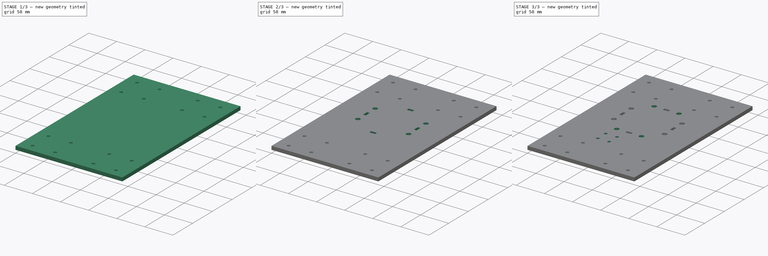
[diagram: build sequence overview — one tinted view per stage of 3, left to right]
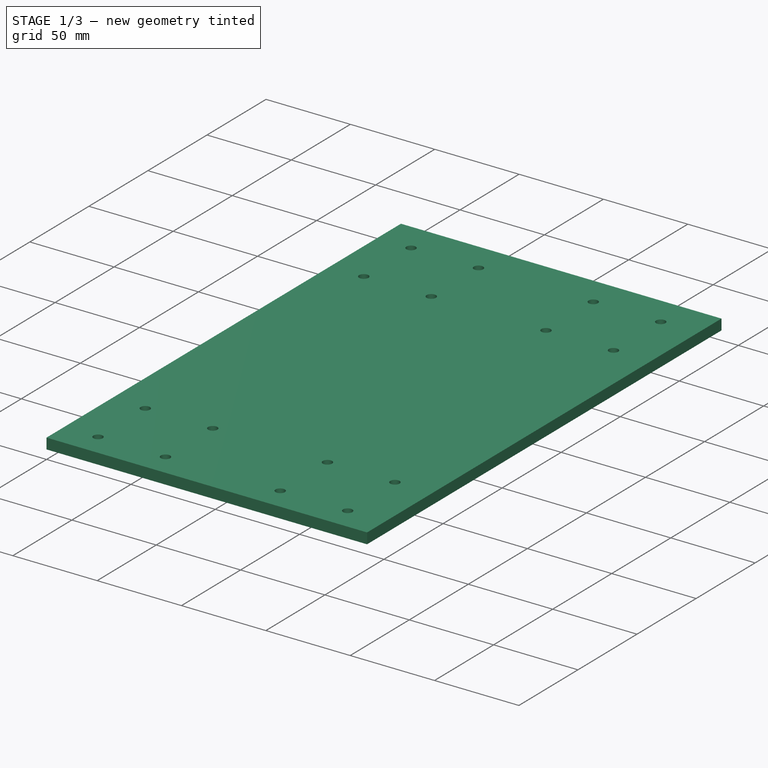
[diagram: stage 1 of 3 — iso view after this stage's code; geometry added in this stage tinted green]
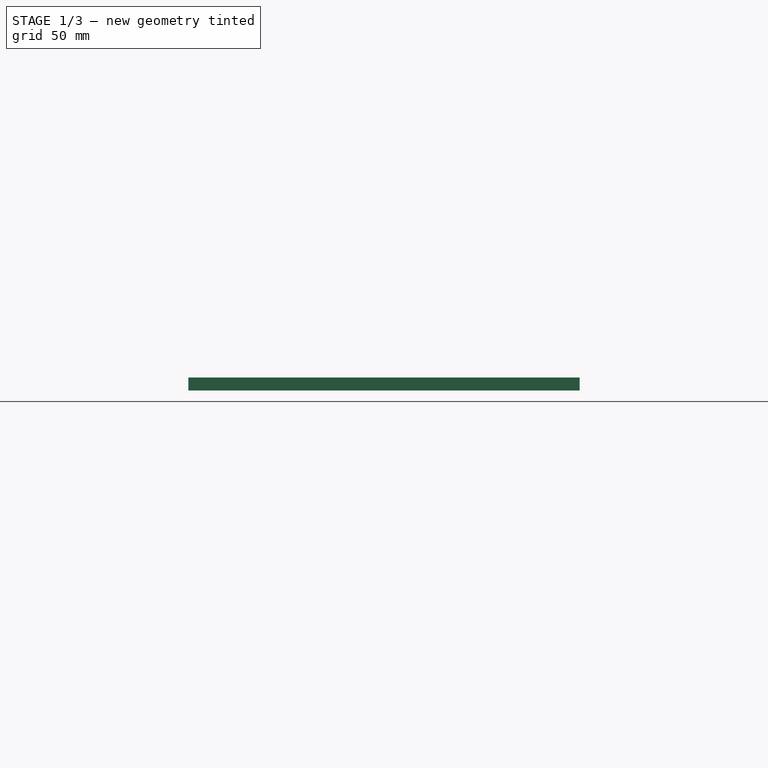
[diagram: stage 1 of 3 — front view after this stage's code; geometry added in this stage tinted green]
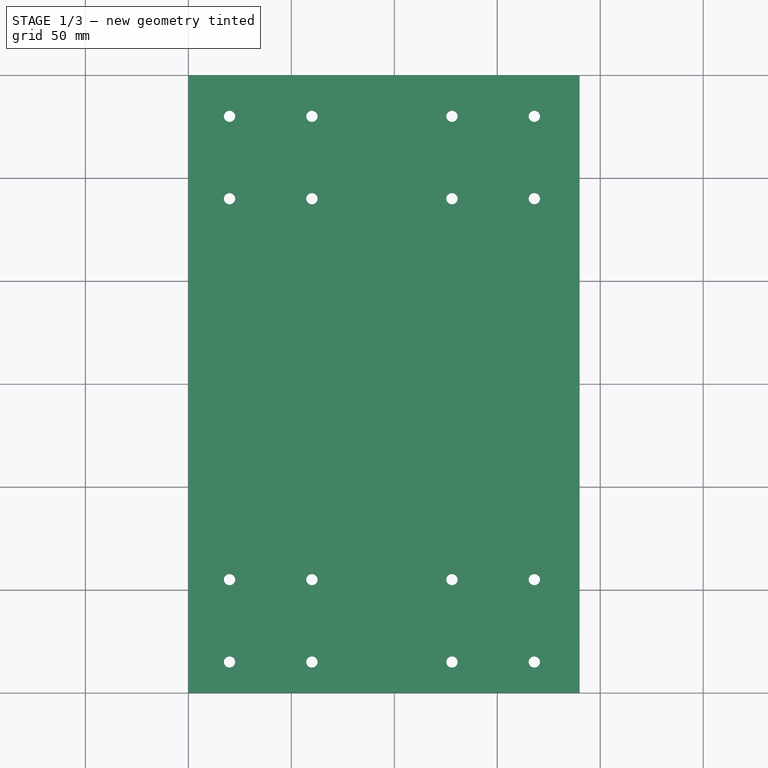
[diagram: stage 1 of 3 — top view after this stage's code; geometry added in this stage tinted green]
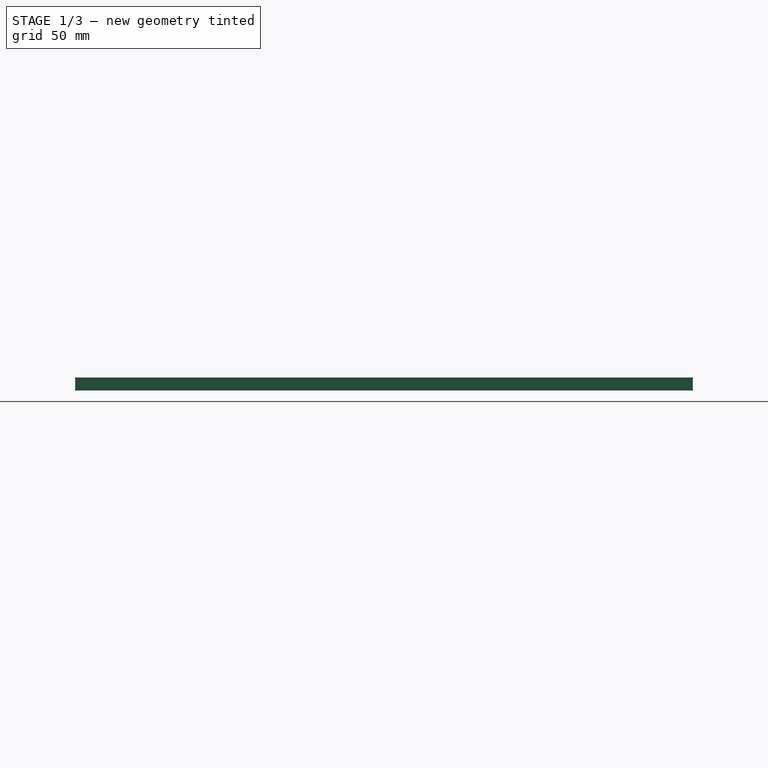
[diagram: stage 1 of 3 — right view after this stage's code; geometry added in this stage tinted green]
FCSTD DOCUMENT  (FreeCAD 0.14R3700 (Git))
Label: ArmMountSlidePlate
License: CC-BY 3.0
LicenseURL: http://creativecommons.org/licenses/by/3.0/
objects: Sketcher::SketchObject×5, PartDesign::Pocket×4, PartDesign::Pad×1
note: 15 computed .brp shape members not serialized (recipe doc carries the construction recipe); baked Part::Feature solids carry a one-line shape summary decoded from their .brp

FEATURE [Sketcher::SketchObject] Sketch
  sketch-geometry (4):
    g0: LineSegment StartX=0 StartY=300 StartZ=0 EndX=190 EndY=300 EndZ=0
    g1: LineSegment StartX=190 StartY=300 StartZ=0 EndX=190 EndY=0 EndZ=0
    g2: LineSegment StartX=190 StartY=0 StartZ=0 EndX=0 EndY=0 EndZ=0
    g3: LineSegment StartX=0 StartY=0 StartZ=0 EndX=0 EndY=300 EndZ=0
  constraints (12):
    c: Coincident(g0,g1)
    c: Coincident(g1,g2)
    c: Coincident(g2,g3)
    c: Coincident(g3,g0)
    c: Horizontal(g0)
    c: Horizontal(g2)
    c: Vertical(g1)
    c: Vertical(g3)
    c: PointOnObject(g0,g-2)
    c: PointOnObject(g2,g-1)
    c: DistanceX(g0) = 190
    c: DistanceY(g3) = 300
FEATURE [PartDesign::Pad] Pad
  Length = 6.35
  Length2 = 100
  Sketch = -> Sketch
  Type = 0
FEATURE [Sketcher::SketchObject] Sketch001
  ExternalGeometry = -> [Pad]
  Placement = pos=(0,0,6.35) rot=(0,0,1;0rad)
  Support = -> Pad [Face6]
  sketch-geometry (16):
    g0: Circle CenterX=20 CenterY=280 CenterZ=0 NormalX=0 NormalY=0 NormalZ=1 Radius=2.75
    g1: Circle CenterX=20 CenterY=240 CenterZ=0 NormalX=0 NormalY=0 NormalZ=1 Radius=2.75
    g2: Circle CenterX=60 CenterY=240 CenterZ=0 NormalX=0 NormalY=0 NormalZ=1 Radius=2.75
    g3: Circle CenterX=60 CenterY=280 CenterZ=0 NormalX=0 NormalY=0 NormalZ=1 Radius=2.75
    g4: Circle CenterX=128 CenterY=280 CenterZ=0 NormalX=0 NormalY=0 NormalZ=1 Radius=2.75
    g5: Circle CenterX=168 CenterY=280 CenterZ=0 NormalX=0 NormalY=0 NormalZ=1 Radius=2.75
    g6: Circle CenterX=128 CenterY=240 CenterZ=0 NormalX=0 NormalY=0 NormalZ=1 Radius=2.75
    g7: Circle CenterX=168 CenterY=240 CenterZ=0 NormalX=0 NormalY=0 NormalZ=1 Radius=2.75
    g8: Circle CenterX=20 CenterY=55 CenterZ=0 NormalX=0 NormalY=0 NormalZ=1 Radius=2.75
    g9: Circle CenterX=60 CenterY=55 CenterZ=0 NormalX=0 NormalY=0 NormalZ=1 Radius=2.75
    g10: Circle CenterX=20 CenterY=15 CenterZ=0 NormalX=0 NormalY=0 NormalZ=1 Radius=2.75
    g11: Circle CenterX=60 CenterY=15 CenterZ=0 NormalX=0 NormalY=0 NormalZ=1 Radius=2.75
    g12: Circle CenterX=128 CenterY=15 CenterZ=0 NormalX=0 NormalY=0 NormalZ=1 Radius=2.75
    g13: Circle CenterX=168 CenterY=55 CenterZ=0 NormalX=0 NormalY=0 NormalZ=1 Radius=2.75
    g14: Circle CenterX=128 CenterY=55 CenterZ=0 NormalX=0 NormalY=0 NormalZ=1 Radius=2.75
    g15: Circle CenterX=168 CenterY=15 CenterZ=0 NormalX=0 NormalY=0 NormalZ=1 Radius=2.75
  constraints (48):
    c: Radius(g3) = 2.75
    c: Equal(g3,g2)
    c: Equal(g3,g1)
    c: Equal(g0,g3)
    c: DistanceX(g0,g3) = 40
    c: DistanceY(g0,g3) = 0
    c: DistanceY(g1,g0) = 40
    c: DistanceX(g2,g1) = -40
    c: DistanceY(g2,g1) = 0
    c: DistanceX(g1,g0) = 0
    c: Distance(g0,g-3) = 20
    c: DistanceX(g-1,g0) = 20
    c: Equal(g4,g0)
    c: Equal(g0,g6)
    c: Equal(g5,g0)
    c: Equal(g0,g7)
    c: DistanceX(g4,g5) = 40
    c: DistanceX(g4,g0) = -108
    c: DistanceX(g6,g4) = 0
    c: DistanceY(g6,g4) = 40
    c: DistanceY(g7,g6) = 0
    c: DistanceX(g7,g6) = -40
    c: DistanceY(g5,g4) = 0
    c: DistanceY(g4,g3) = 0
    c: Equal(g8,g10)
    c: Equal(g10,g9)
    c: Equal(g9,g11)
    c: Equal(g11,g2)
    c: DistanceX(g8,g9) = 40
    c: DistanceY(g10,g11) = 0
    c: DistanceY(g9,g8) = 0
    c: DistanceX(g11,g9) = 0
    c: DistanceX(g11,g10) = -40
    c: DistanceY(g9,g11) = -40
    c: DistanceX(g8,g1) = 0
    c: DistanceX(g12,g6) = 0
    c: Equal(g14,g15)
    c: Equal(g15,g13)
    c: Equal(g13,g12)
    c: Equal(g12,g8)
    c: DistanceY(g12,g11) = 0
    c: DistanceY(g15,g12) = 0
    c: DistanceX(g15,g12) = -40
    c: DistanceX(g13,g15) = 0
    c: DistanceY(g14,g9) = 0
    c: DistanceX(g14,g12) = 0
    c: DistanceY(g13,g14) = 0
    c: DistanceY(g-1,g10) = 15
FEATURE [PartDesign::Pocket] Pocket
  Length = 5
  Sketch = -> Sketch001
  Type = 1
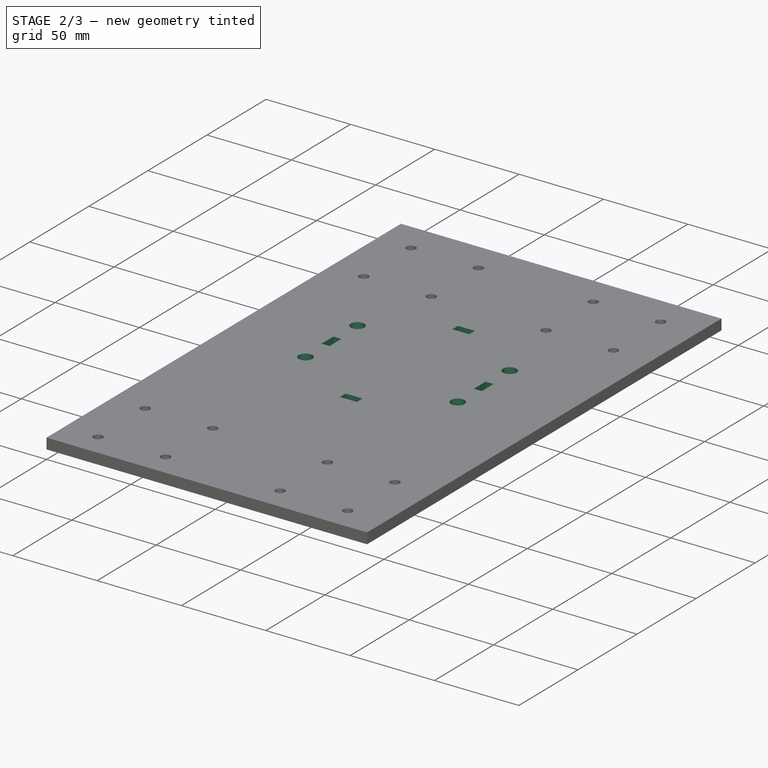
[diagram: stage 2 of 3 — iso view after this stage's code; geometry added in this stage tinted green]
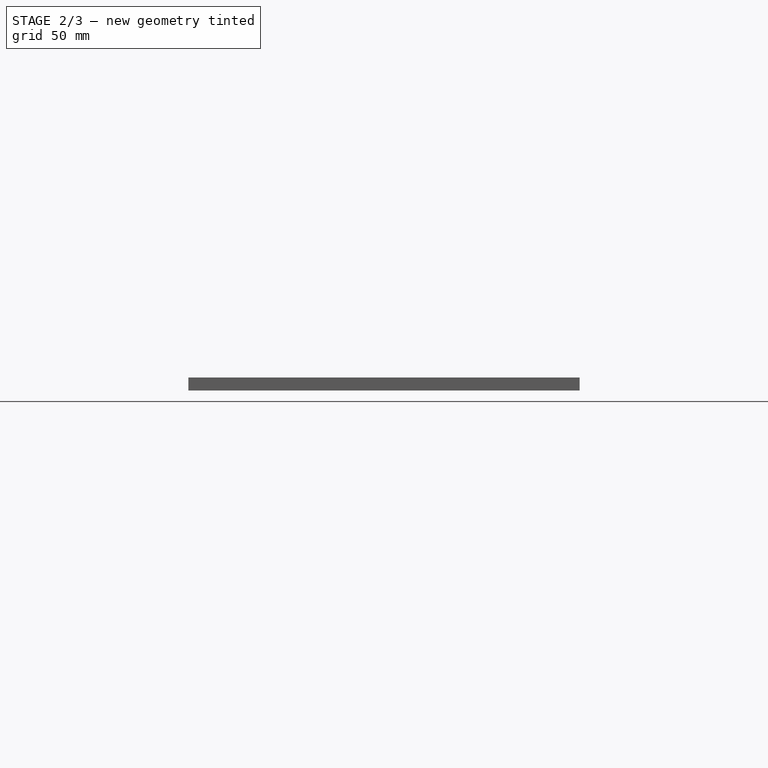
[diagram: stage 2 of 3 — front view after this stage's code; geometry added in this stage tinted green]
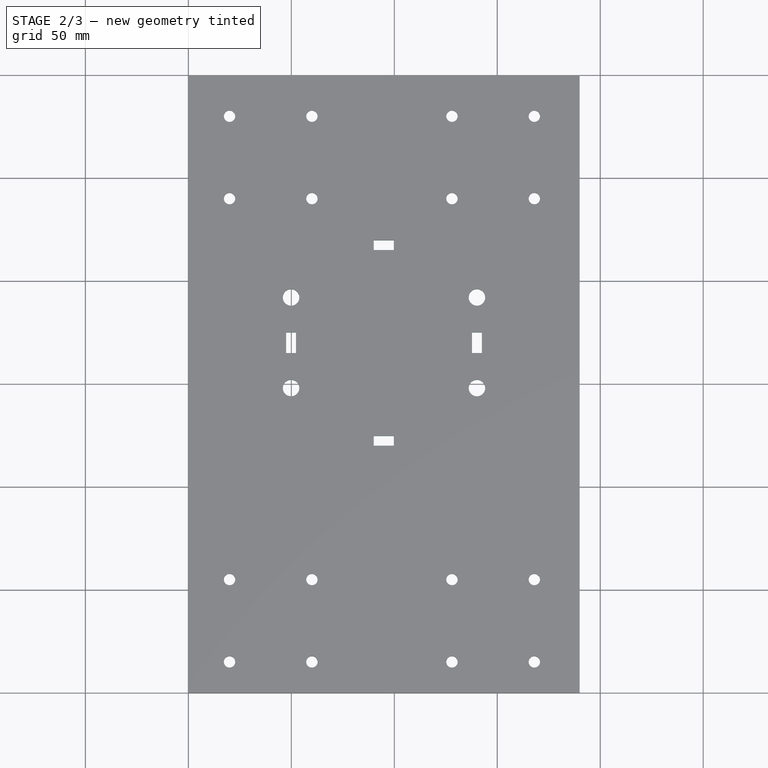
[diagram: stage 2 of 3 — top view after this stage's code; geometry added in this stage tinted green]
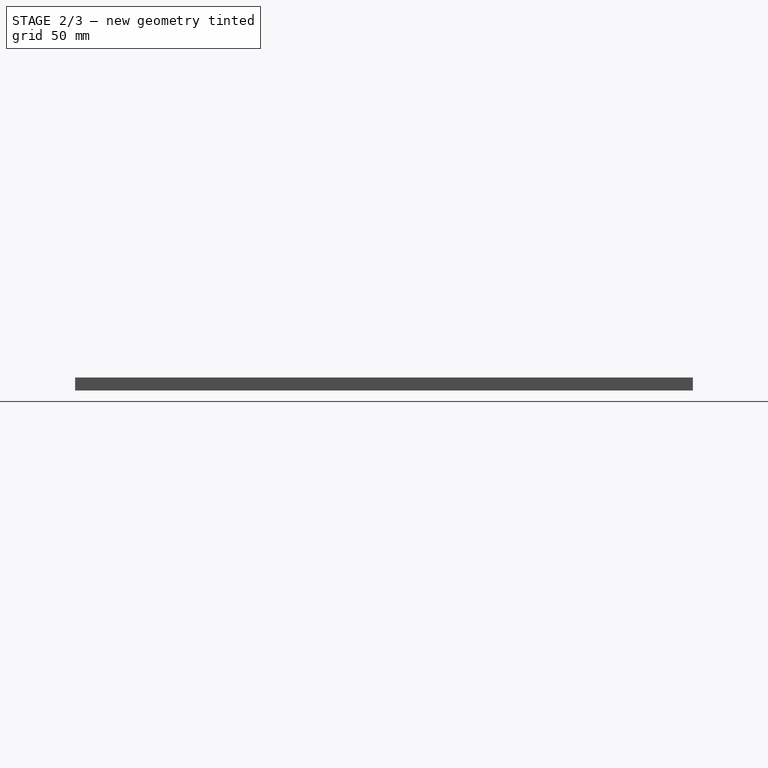
[diagram: stage 2 of 3 — right view after this stage's code; geometry added in this stage tinted green]
FEATURE [Sketcher::SketchObject] Sketch002
  Placement = pos=(0,0,0) rot=(1,0,0;3.14159rad)
  Support = -> Pocket [Face4]
  sketch-geometry (20):
    g0: LineSegment StartX=90 StartY=-120 StartZ=0 EndX=100 EndY=-120 EndZ=0
    g1: LineSegment StartX=100 StartY=-120 StartZ=0 EndX=100 EndY=-124.75 EndZ=0
    g2: LineSegment StartX=100 StartY=-124.75 StartZ=0 EndX=90 EndY=-124.75 EndZ=0
    g3: LineSegment StartX=90 StartY=-124.75 StartZ=0 EndX=90 EndY=-120 EndZ=0
    g4: LineSegment StartX=90 StartY=-219.75 StartZ=0 EndX=100 EndY=-219.75 EndZ=0
    g5: LineSegment StartX=100 StartY=-219.75 StartZ=0 EndX=100 EndY=-215 EndZ=0
    g6: LineSegment StartX=100 StartY=-215 StartZ=0 EndX=90 EndY=-215 EndZ=0
    g7: LineSegment StartX=90 StartY=-215 StartZ=0 EndX=90 EndY=-219.75 EndZ=0
    g8: LineSegment StartX=52.25 StartY=-175 StartZ=0 EndX=47.5 EndY=-175 EndZ=0
    g9: LineSegment StartX=47.5 StartY=-175 StartZ=0 EndX=47.5 EndY=-165 EndZ=0
    g10: LineSegment StartX=47.5 StartY=-165 StartZ=0 EndX=52.25 EndY=-165 EndZ=0
    g11: LineSegment StartX=52.25 StartY=-165 StartZ=0 EndX=52.25 EndY=-175 EndZ=0
    g12: LineSegment StartX=142.5 StartY=-165 StartZ=0 EndX=137.75 EndY=-165 EndZ=0
    g13: LineSegment StartX=137.75 StartY=-165 StartZ=0 EndX=137.75 EndY=-175 EndZ=0
    g14: LineSegment StartX=137.75 StartY=-175 StartZ=0 EndX=142.5 EndY=-175 EndZ=0
    g15: LineSegment StartX=142.5 StartY=-175 StartZ=0 EndX=142.5 EndY=-165 EndZ=0
    g16: Circle CenterX=49.875 CenterY=-148 CenterZ=0 NormalX=0 NormalY=0 NormalZ=1 Radius=4
    g17: Circle CenterX=49.875 CenterY=-192 CenterZ=0 NormalX=0 NormalY=0 NormalZ=1 Radius=4
    g18: Circle CenterX=140.125 CenterY=-148 CenterZ=0 NormalX=0 NormalY=0 NormalZ=1 Radius=4
    g19: Circle CenterX=140.125 CenterY=-192 CenterZ=0 NormalX=0 NormalY=0 NormalZ=1 Radius=4
  constraints (60):
    c: Coincident(g0,g1)
    c: Coincident(g1,g2)
    c: Coincident(g2,g3)
    c: Coincident(g3,g0)
    c: Horizontal(g0)
    c: Horizontal(g2)
    c: Vertical(g1)
    c: Vertical(g3)
    c: Coincident(g4,g5)
    c: Coincident(g5,g6)
    c: Coincident(g6,g7)
    c: Coincident(g7,g4)
    c: Horizontal(g4)
    c: Horizontal(g6)
    c: Vertical(g5)
    c: Vertical(g7)
    c: Coincident(g8,g9)
    c: Coincident(g9,g10)
    c: Coincident(g10,g11)
    c: Coincident(g11,g8)
    c: Horizontal(g8)
    c: Horizontal(g10)
    c: Vertical(g9)
    c: Vertical(g11)
    c: Coincident(g12,g13)
    c: Coincident(g13,g14)
    c: Coincident(g14,g15)
    c: Coincident(g15,g12)
    c: Horizontal(g12)
    c: Horizontal(g14)
    c: Vertical(g13)
    c: Vertical(g15)
    c: DistanceX(g0) = 10
    c: DistanceY(g1) = -4.75
    c: Equal(g10,g1)
    c: DistanceY(g11) = -10
    c: DistanceX(g4) = 10
    c: Equal(g13,g0)
    c: Equal(g12,g5)
    c: Equal(g5,g1)
    c: DistanceY(g8,g14) = 0
    c: DistanceX(g2,g4) = 0
    c: DistanceX(g9,g12) = 95
    c: DistanceY(g1,g4) = -95
    c: DistanceX(g-1,g4) = 90
    c: DistanceX(g-1,g8) = 47.5
    c: DistanceY(g10,g0) = 45
    c: DistanceY(g-1,g0) = -120
    c: Radius(g16) = 4
    c: Equal(g18,g16)
    c: Equal(g17,g19)
    c: Equal(g19,g16)
    c: DistanceY(g16,g18) = 0
    c: DistanceX(g16,g10) = 2.375
    c: DistanceY(g16,g17) = -44
    c: DistanceY(g16,g9) = -17
    c: DistanceX(g17,g16) = 0
    c: DistanceX(g19,g18) = 0
    c: DistanceY(g19,g17) = 0
    c: DistanceX(g19,g13) = -2.375
FEATURE [PartDesign::Pocket] Pocket001
  Length = 5
  Sketch = -> Sketch002
  Type = 1
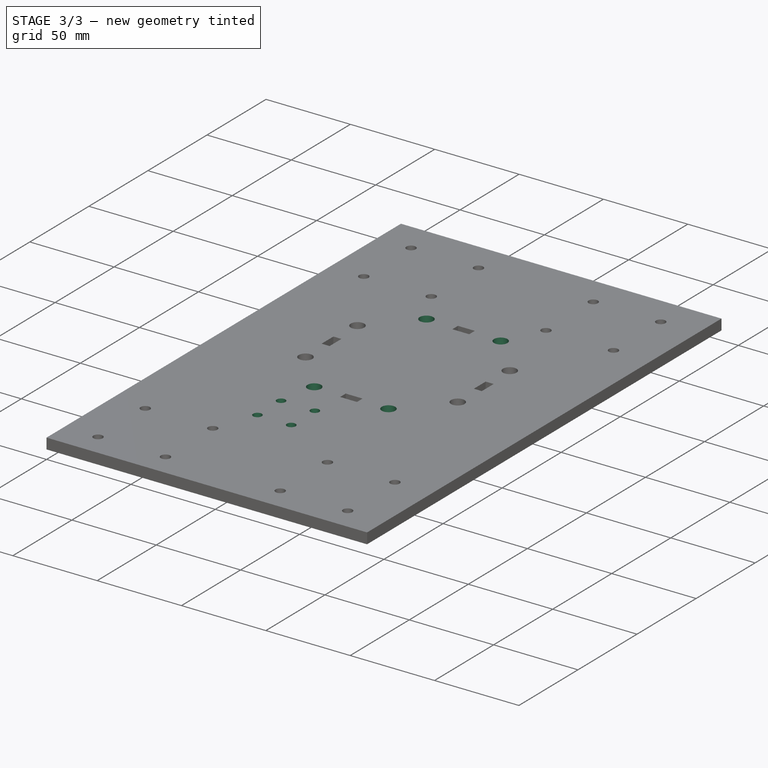
[diagram: stage 3 of 3 — iso view after this stage's code; geometry added in this stage tinted green]
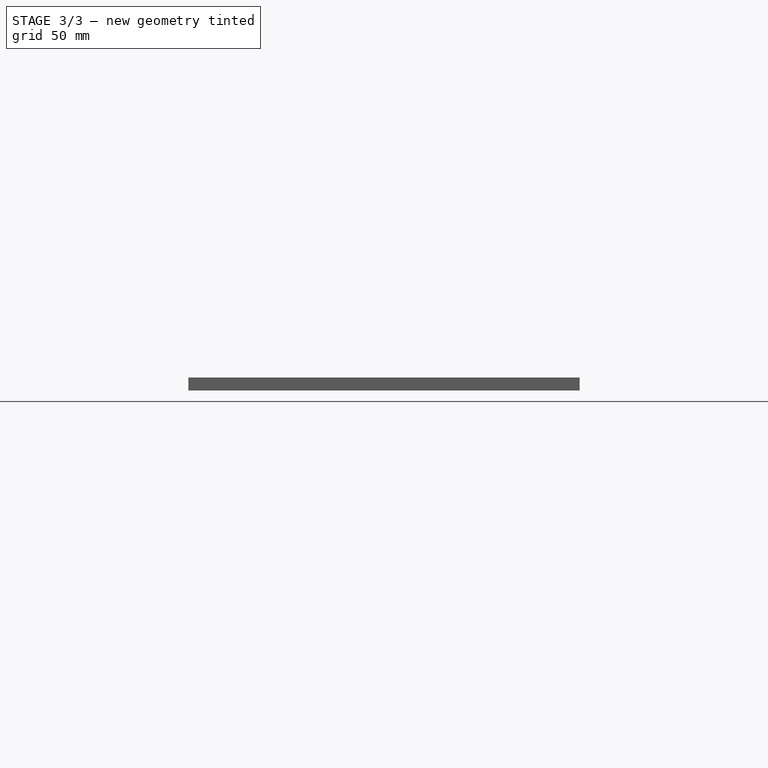
[diagram: stage 3 of 3 — front view after this stage's code; geometry added in this stage tinted green]
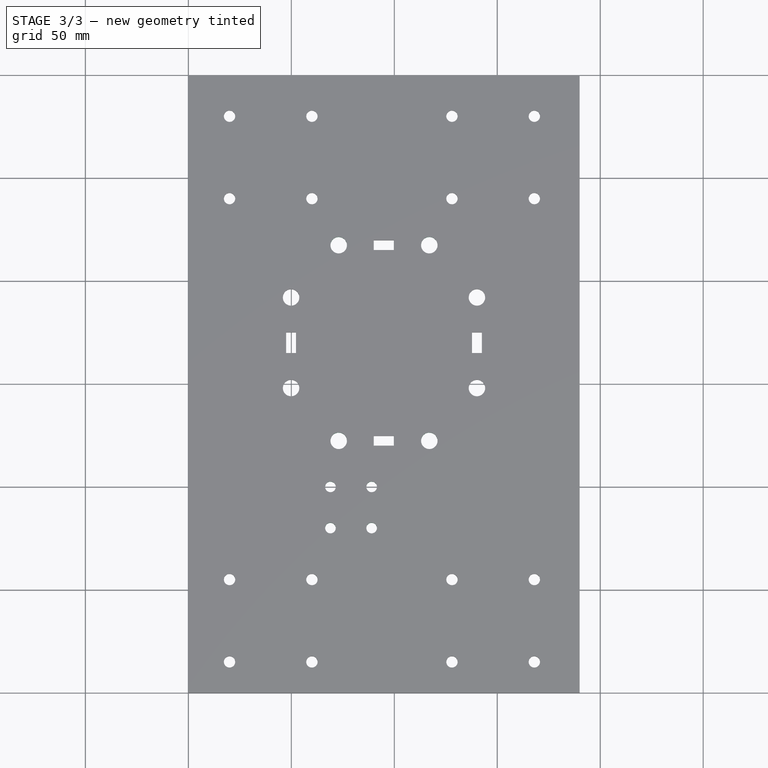
[diagram: stage 3 of 3 — top view after this stage's code; geometry added in this stage tinted green]
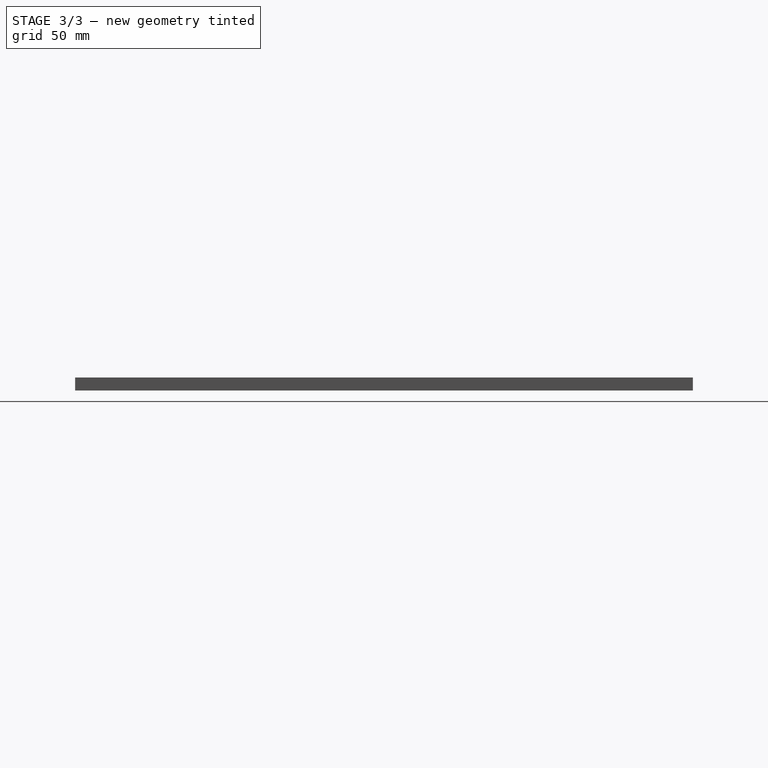
[diagram: stage 3 of 3 — right view after this stage's code; geometry added in this stage tinted green]
FEATURE [Sketcher::SketchObject] Sketch003
  Placement = pos=(0,0,0) rot=(1,0,0;3.14159rad)
  Support = -> Pocket001 [Face4]
  sketch-geometry (4):
    g0: Circle CenterX=73 CenterY=-217.375 CenterZ=0 NormalX=0 NormalY=0 NormalZ=1 Radius=4
    g1: Circle CenterX=117 CenterY=-217.375 CenterZ=0 NormalX=0 NormalY=0 NormalZ=1 Radius=4
    g2: Circle CenterX=73 CenterY=-122.375 CenterZ=0 NormalX=0 NormalY=0 NormalZ=1 Radius=4
    g3: Circle CenterX=117 CenterY=-122.375 CenterZ=0 NormalX=0 NormalY=0 NormalZ=1 Radius=4
  constraints (11):
    c: DistanceX(g2,g0) = 0
    c: Radius(g2) = 4
    c: Equal(g2,g3)
    c: Equal(g3,g1)
    c: Equal(g1,g0)
    c: DistanceY(g2,g3) = 0
    c: DistanceX(g3,g1) = 0
    c: DistanceY(g0,g1) = 0
    c: DistanceX(g3,g2) = -44
    c: DistanceX(g-1,g2) = 73
    c: DistanceY(g0,g2) = 95
FEATURE [PartDesign::Pocket] Pocket002
  Length = 5
  Sketch = -> Sketch003
  Type = 1
FEATURE [Sketcher::SketchObject] Sketch004
  Placement = pos=(0,0,0) rot=(1,0,0;3.14159rad)
  Support = -> Pocket002 [Face4]
  sketch-geometry (4):
    g0: Circle CenterX=69 CenterY=-80 CenterZ=0 NormalX=0 NormalY=0 NormalZ=1 Radius=2.5781
    g1: Circle CenterX=89 CenterY=-80 CenterZ=0 NormalX=0 NormalY=0 NormalZ=1 Radius=2.5781
    g2: Circle CenterX=89 CenterY=-100 CenterZ=0 NormalX=0 NormalY=0 NormalZ=1 Radius=2.5781
    g3: Circle CenterX=69 CenterY=-100 CenterZ=0 NormalX=0 NormalY=0 NormalZ=1 Radius=2.5781
  constraints (12):
    c: Radius(g0) = 2.5781
    c: Equal(g0,g3)
    c: Equal(g3,g1)
    c: Equal(g1,g2)
    c: DistanceY(g0,g1) = 0
    c: DistanceX(g3,g0) = 0
    c: DistanceY(g3,g2) = 0
    c: DistanceX(g1,g2) = 0
    c: DistanceY(g-1,g0) = -80
    c: DistanceY(g3,g0) = 20
    c: DistanceX(g3,g2) = 20
    c: DistanceX(g-1,g0) = 69
FEATURE [PartDesign::Pocket] Pocket003
  Length = 5
  Sketch = -> Sketch004
  Type = 1
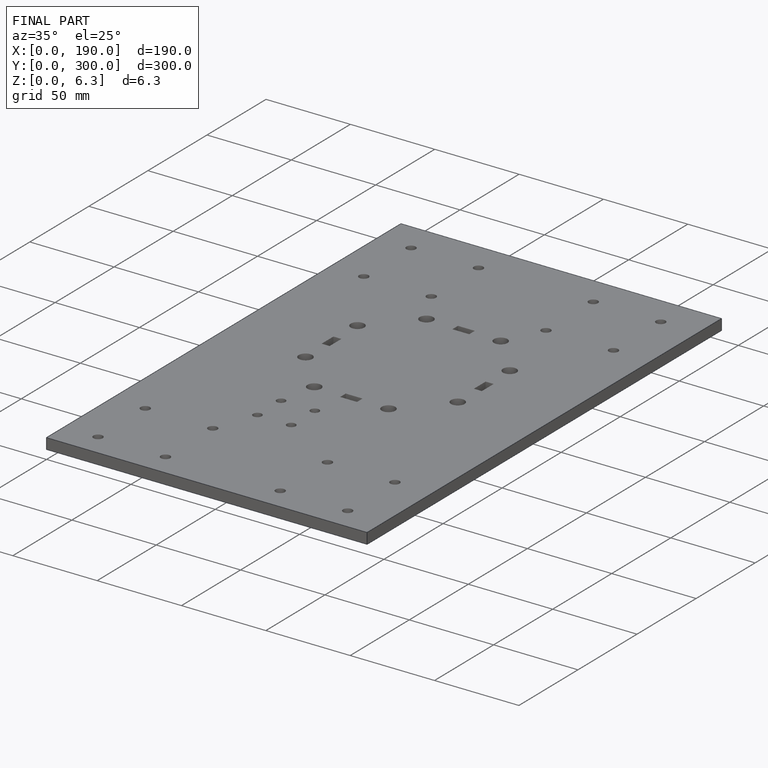
[diagram: finished part — iso view with bounding-box wireframe]
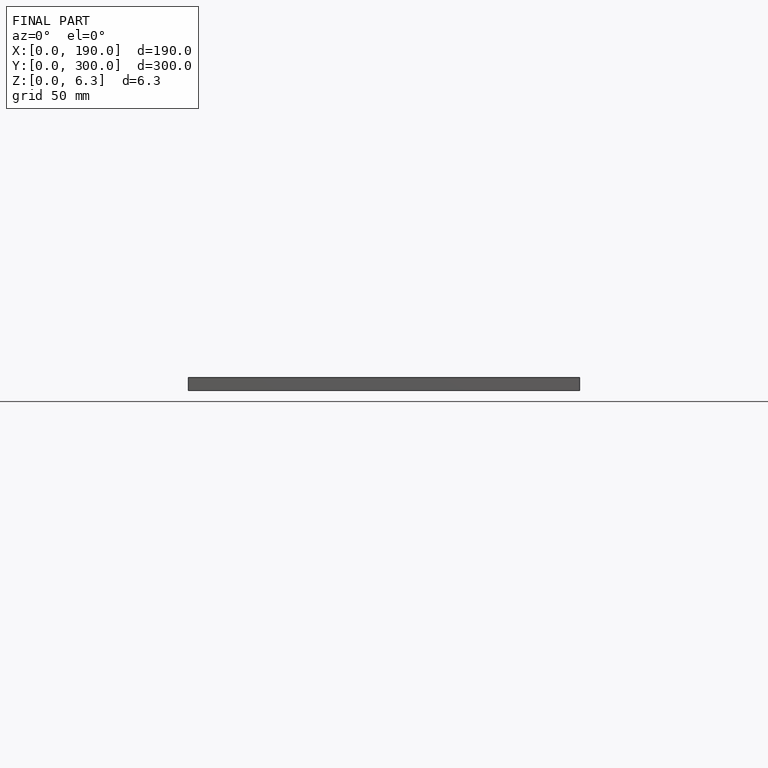
[diagram: finished part — front view with bounding-box wireframe]
